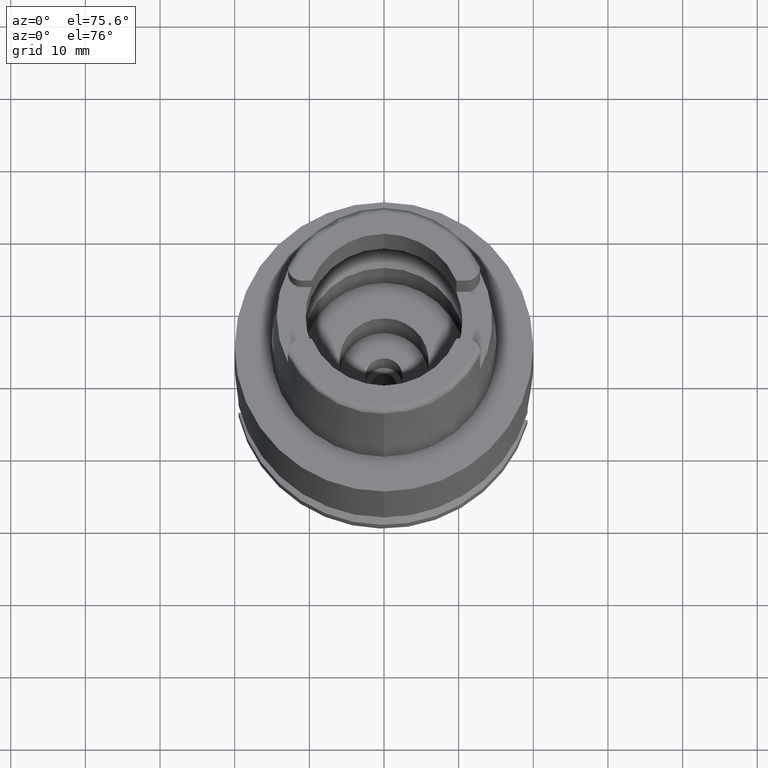
[diagram: clean part render]
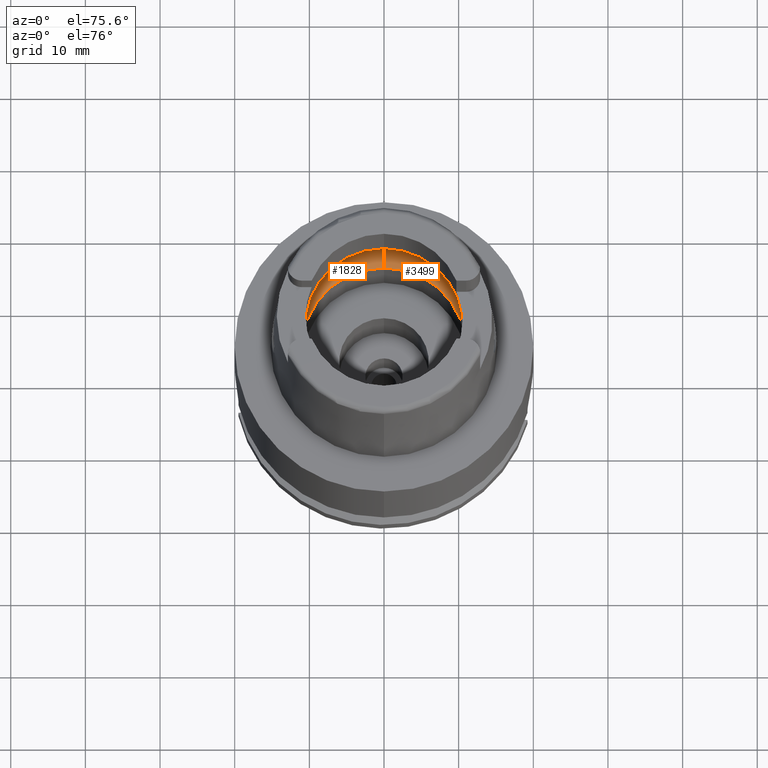
[diagram: same view with one multi-face feature highlighted, each face labeled with its STEP entity id]
A machine part, auxiliary view. The highlighted faces form ONE feature: a constant-radius fillet chain: 2 tangent blend faces with common blend radius 5 mm. The faces share edges in the B-rep.
Their STEP definitions:
[1] entity #3499 (Torus):
#298 = DIRECTION ( 'NONE',  ( 1.000000000000000000, 0.0000000000000000000, 0.0000000000000000000 ) ) ;
#352 = VERTEX_POINT ( 'NONE', #2903 ) ;
#381 = ORIENTED_EDGE ( 'NONE', *, *, #4491, .T. ) ;
#398 = ORIENTED_EDGE ( 'NONE', *, *, #2881, .F. ) ;
#440 = CARTESIAN_POINT ( 'NONE',  ( 12.71822740102000004, -0.9055573312577999134, 3.882617119809000261 ) ) ;
#447 = CARTESIAN_POINT ( 'NONE',  ( 0.0000000000000000000, -10.90000000000000036, 0.05033650044221000402 ) ) ;
#483 = ORIENTED_EDGE ( 'NONE', *, *, #3586, .F. ) ;
#525 = VERTEX_POINT ( 'NONE', #2697 ) ;
#608 = EDGE_CURVE ( 'NONE', #4678, #2464, #3903, .T. ) ;
#721 = DIRECTION ( 'NONE',  ( -1.000000000000000000, 0.0000000000000000000, 0.0000000000000000000 ) ) ;
#792 = CARTESIAN_POINT ( 'NONE',  ( 12.74455357708000136, 0.0000000000000000000, 3.700000000000000178 ) ) ;
#797 = CARTESIAN_POINT ( 'NONE',  ( 0.0000000000000000000, 0.0000000000000000000, 3.933312163512999504 ) ) ;
#825 = B_SPLINE_CURVE_WITH_KNOTS ( 'NONE', 3,
 ( #792, #1228, #4956, #2081, #440, #2833 ),
 .UNSPECIFIED., .F., .F.,
 ( 4, 1, 1, 4 ),
 ( 0.0000000000000000000, 0.3333333333333000081, 0.6666666666667000474, 1.000000000000000000 ),
 .UNSPECIFIED. ) ;
#869 = CARTESIAN_POINT ( 'NONE',  ( 12.74221164577000209, 0.3492612827124999542, 3.717726391319000179 ) ) ;
#904 = CARTESIAN_POINT ( 'NONE',  ( 0.0000000000000000000, 10.90000000000000036, 0.05033650044222000297 ) ) ;
#1031 = TOROIDAL_SURFACE ( 'NONE', #4099, 7.750000000000000000, 5.000000000000000000 ) ;
#1228 = CARTESIAN_POINT ( 'NONE',  ( 12.74455357708000136, -0.1165038148362000092, 3.700000000000000178 ) ) ;
#1280 = CARTESIAN_POINT ( 'NONE',  ( 12.70998420979999999, 1.009356917307999923, 3.933312163512999504 ) ) ;
#1385 = EDGE_CURVE ( 'NONE', #352, #3753, #825, .T. ) ;
#1455 = CIRCLE ( 'NONE', #4945, 12.75000000000000000 ) ;
#1493 = EDGE_CURVE ( 'NONE', #4314, #352, #3676, .T. ) ;
#1557 = DIRECTION ( 'NONE',  ( 0.0000000000000000000, -0.6299999999999791322, -0.7765951326141738997 ) ) ;
#1611 = AXIS2_PLACEMENT_3D ( 'NONE', #3954, #298, #1944 ) ;
#1824 = CARTESIAN_POINT ( 'NONE',  ( 12.70998420979999999, -1.009356917307999923, 3.933312163512999504 ) ) ;
#1944 = DIRECTION ( 'NONE',  ( 0.0000000000000000000, 0.6299999999999791322, -0.7765951326141738997 ) ) ;
#2081 = CARTESIAN_POINT ( 'NONE',  ( 12.73125904006000120, -0.6899171919855998647, 3.796695554551000384 ) ) ;
#2087 = DIRECTION ( 'NONE',  ( 0.0000000000000000000, 0.0000000000000000000, -1.000000000000000000 ) ) ;
#2138 = CIRCLE ( 'NONE', #4854, 12.75000000000000533 ) ;
#2369 = AXIS2_PLACEMENT_3D ( 'NONE', #4392, #721, #1557 ) ;
#2375 = CIRCLE ( 'NONE', #3543, 10.90000000000000036 ) ;
#2464 = VERTEX_POINT ( 'NONE', #4115 ) ;
#2483 = DIRECTION ( 'NONE',  ( 0.0000000000000000000, 1.000000000000000000, 0.0000000000000000000 ) ) ;
#2499 = CARTESIAN_POINT ( 'NONE',  ( 12.74455357708000136, 0.1165090171503000011, 3.700000000000000178 ) ) ;
#2668 = CARTESIAN_POINT ( 'NONE',  ( 12.70998420979999999, 1.009356917307999923, 3.933312163512999504 ) ) ;
#2697 = CARTESIAN_POINT ( 'NONE',  ( 0.0000000000000000000, -12.75000000000000000, 3.933312163512999504 ) ) ;
#2717 = ORIENTED_EDGE ( 'NONE', *, *, #5031, .F. ) ;
#2791 = DIRECTION ( 'NONE',  ( 0.0000000000000000000, 0.0000000000000000000, -1.000000000000000000 ) ) ;
#2833 = CARTESIAN_POINT ( 'NONE',  ( 12.70998420979999999, -1.009356917307999923, 3.933312163512999504 ) ) ;
#2838 = CARTESIAN_POINT ( 'NONE',  ( 0.0000000000000000000, 0.0000000000000000000, 3.933312163512999504 ) ) ;
#2876 = ORIENTED_EDGE ( 'NONE', *, *, #1493, .F. ) ;
#2881 = EDGE_CURVE ( 'NONE', #3753, #525, #2138, .T. ) ;
#2884 = CARTESIAN_POINT ( 'NONE',  ( 12.71822753198000022, 0.9055556822100000458, 3.882616314424999882 ) ) ;
#2903 = CARTESIAN_POINT ( 'NONE',  ( 12.74455357708000136, 0.0000000000000000000, 3.700000000000000178 ) ) ;
#3259 = DIRECTION ( 'NONE',  ( 0.0000000000000000000, -1.000000000000000000, 0.0000000000000000000 ) ) ;
#3314 = DIRECTION ( 'NONE',  ( 0.0000000000000000000, 0.0000000000000000000, 1.000000000000000000 ) ) ;
#3499 = ADVANCED_FACE ( 'NONE', ( #3663 ), #1031, .F. ) ;
#3500 = VERTEX_POINT ( 'NONE', #447 ) ;
#3543 = AXIS2_PLACEMENT_3D ( 'NONE', #4109, #3314, #3259 ) ;
#3586 = EDGE_CURVE ( 'NONE', #2464, #4314, #1455, .T. ) ;
#3633 = DIRECTION ( 'NONE',  ( 0.0000000000000000000, 0.0000000000000000000, 1.000000000000000000 ) ) ;
#3663 = FACE_OUTER_BOUND ( 'NONE', #3896, .T. ) ;
#3676 = B_SPLINE_CURVE_WITH_KNOTS ( 'NONE', 3,
 ( #1280, #2884, #4529, #869, #2499, #4128 ),
 .UNSPECIFIED., .F., .F.,
 ( 4, 1, 1, 4 ),
 ( 0.0000000000000000000, 0.3333333333333000081, 0.6666666666667000474, 1.000000000000000000 ),
 .UNSPECIFIED. ) ;
#3753 = VERTEX_POINT ( 'NONE', #1824 ) ;
#3896 = EDGE_LOOP ( 'NONE', ( #2876, #483, #4648, #2717, #381, #398, #4312 ) ) ;
#3903 = CIRCLE ( 'NONE', #1611, 5.000000000000000888 ) ;
#3954 = CARTESIAN_POINT ( 'NONE',  ( 0.0000000000000000000, 7.750000000000000000, 3.933312163512999504 ) ) ;
#3976 = CIRCLE ( 'NONE', #2369, 5.000000000000000888 ) ;
#4050 = DIRECTION ( 'NONE',  ( 0.0000000000000000000, 1.000000000000000000, 0.0000000000000000000 ) ) ;
#4099 = AXIS2_PLACEMENT_3D ( 'NONE', #2838, #3633, #2483 ) ;
#4109 = CARTESIAN_POINT ( 'NONE',  ( 0.0000000000000000000, 0.0000000000000000000, 0.05033650044222000297 ) ) ;
#4115 = CARTESIAN_POINT ( 'NONE',  ( 0.0000000000000000000, 12.75000000000000000, 3.933312163512999504 ) ) ;
#4128 = CARTESIAN_POINT ( 'NONE',  ( 12.74455357708000136, 0.0000000000000000000, 3.700000000000000178 ) ) ;
#4312 = ORIENTED_EDGE ( 'NONE', *, *, #1385, .F. ) ;
#4314 = VERTEX_POINT ( 'NONE', #2668 ) ;
#4392 = CARTESIAN_POINT ( 'NONE',  ( 0.0000000000000000000, -7.750000000000000000, 3.933312163512999504 ) ) ;
#4437 = CARTESIAN_POINT ( 'NONE',  ( 0.0000000000000000000, 0.0000000000000000000, 3.933312163512999504 ) ) ;
#4491 = EDGE_CURVE ( 'NONE', #3500, #525, #3976, .T. ) ;
#4529 = CARTESIAN_POINT ( 'NONE',  ( 12.73125913416000010, 0.6899131154631999996, 3.796694836484999946 ) ) ;
#4648 = ORIENTED_EDGE ( 'NONE', *, *, #608, .F. ) ;
#4678 = VERTEX_POINT ( 'NONE', #904 ) ;
#4854 = AXIS2_PLACEMENT_3D ( 'NONE', #4437, #2791, #5154 ) ;
#4945 = AXIS2_PLACEMENT_3D ( 'NONE', #797, #2087, #4050 ) ;
#4956 = CARTESIAN_POINT ( 'NONE',  ( 12.74221194226999998, -0.3492494900142999459, 3.717724218996000030 ) ) ;
#5031 = EDGE_CURVE ( 'NONE', #3500, #4678, #2375, .T. ) ;
#5154 = DIRECTION ( 'NONE',  ( 0.9968615066513395462, -0.07916524841634305087, 0.0000000000000000000 ) ) ;
[2] entity #1828 (Torus):
#127 = EDGE_CURVE ( 'NONE', #2873, #3247, #196, .T. ) ;
#170 = AXIS2_PLACEMENT_3D ( 'NONE', #3139, #717, #3969 ) ;
#196 = B_SPLINE_CURVE_WITH_KNOTS ( 'NONE', 3,
 ( #1903, #5169, #528, #3774, #677, #1042 ),
 .UNSPECIFIED., .F., .F.,
 ( 4, 1, 1, 4 ),
 ( 0.0000000000000000000, 0.3333333333333000081, 0.6666666666667000474, 1.000000000000000000 ),
 .UNSPECIFIED. ) ;
#207 = B_SPLINE_CURVE_WITH_KNOTS ( 'NONE', 3,
 ( #275, #5186, #1162, #5136, #1560, #1112 ),
 .UNSPECIFIED., .F., .F.,
 ( 4, 1, 1, 4 ),
 ( 0.0000000000000000000, 0.3333333333333000081, 0.6666666666667000474, 1.000000000000000000 ),
 .UNSPECIFIED. ) ;
#275 = CARTESIAN_POINT ( 'NONE',  ( -12.70998420979999999, -1.009356917307999923, 3.933312163512999504 ) ) ;
#297 = ORIENTED_EDGE ( 'NONE', *, *, #127, .F. ) ;
#298 = DIRECTION ( 'NONE',  ( 1.000000000000000000, 0.0000000000000000000, 0.0000000000000000000 ) ) ;
#447 = CARTESIAN_POINT ( 'NONE',  ( 0.0000000000000000000, -10.90000000000000036, 0.05033650044221000402 ) ) ;
#525 = VERTEX_POINT ( 'NONE', #2697 ) ;
#528 = CARTESIAN_POINT ( 'NONE',  ( -12.74221165319000093, 0.3492611227261000484, 3.717726340176000122 ) ) ;
#608 = EDGE_CURVE ( 'NONE', #4678, #2464, #3903, .T. ) ;
#609 = ORIENTED_EDGE ( 'NONE', *, *, #608, .T. ) ;
#677 = CARTESIAN_POINT ( 'NONE',  ( -12.71822751322999956, 0.9055559183387998923, 3.882616429747999920 ) ) ;
#680 = AXIS2_PLACEMENT_3D ( 'NONE', #1948, #3122, #3095 ) ;
#717 = DIRECTION ( 'NONE',  ( 0.0000000000000000000, 0.0000000000000000000, 1.000000000000000000 ) ) ;
#721 = DIRECTION ( 'NONE',  ( -1.000000000000000000, 0.0000000000000000000, 0.0000000000000000000 ) ) ;
#770 = CIRCLE ( 'NONE', #680, 12.75000000000000000 ) ;
#904 = CARTESIAN_POINT ( 'NONE',  ( 0.0000000000000000000, 10.90000000000000036, 0.05033650044222000297 ) ) ;
#1042 = CARTESIAN_POINT ( 'NONE',  ( -12.70998420979999999, 1.009356917307999923, 3.933312163512999504 ) ) ;
#1112 = CARTESIAN_POINT ( 'NONE',  ( -12.74455357708000136, 0.0000000000000000000, 3.700000000000000178 ) ) ;
#1162 = CARTESIAN_POINT ( 'NONE',  ( -12.73125906335000046, -0.6899166332000999935, 3.796695391513999596 ) ) ;
#1538 = AXIS2_PLACEMENT_3D ( 'NONE', #2743, #5177, #1988 ) ;
#1542 = CARTESIAN_POINT ( 'NONE',  ( 0.0000000000000000000, 0.0000000000000000000, 3.933312163512999504 ) ) ;
#1557 = DIRECTION ( 'NONE',  ( 0.0000000000000000000, -0.6299999999999791322, -0.7765951326141738997 ) ) ;
#1560 = CARTESIAN_POINT ( 'NONE',  ( -12.74455357708000136, -0.1165038350575000048, 3.700000000000000178 ) ) ;
#1574 = CARTESIAN_POINT ( 'NONE',  ( -12.70998420979999999, -1.009356917307999923, 3.933312163512999504 ) ) ;
#1611 = AXIS2_PLACEMENT_3D ( 'NONE', #3954, #298, #1944 ) ;
#1620 = CIRCLE ( 'NONE', #170, 10.90000000000000036 ) ;
#1736 = EDGE_CURVE ( 'NONE', #525, #2733, #770, .T. ) ;
#1750 = ORIENTED_EDGE ( 'NONE', *, *, #2978, .F. ) ;
#1828 = ADVANCED_FACE ( 'NONE', ( #2349 ), #4612, .F. ) ;
#1903 = CARTESIAN_POINT ( 'NONE',  ( -12.74455357708000136, 0.0000000000000000000, 3.700000000000000178 ) ) ;
#1944 = DIRECTION ( 'NONE',  ( 0.0000000000000000000, 0.6299999999999791322, -0.7765951326141738997 ) ) ;
#1948 = CARTESIAN_POINT ( 'NONE',  ( 0.0000000000000000000, 0.0000000000000000000, 3.933312163512999504 ) ) ;
#1988 = DIRECTION ( 'NONE',  ( -0.9968615066513395462, 0.07916524841634305087, 0.0000000000000000000 ) ) ;
#2267 = DIRECTION ( 'NONE',  ( 0.0000000000000000000, 1.000000000000000000, 0.0000000000000000000 ) ) ;
#2317 = AXIS2_PLACEMENT_3D ( 'NONE', #1542, #3154, #2267 ) ;
#2349 = FACE_OUTER_BOUND ( 'NONE', #3544, .T. ) ;
#2369 = AXIS2_PLACEMENT_3D ( 'NONE', #4392, #721, #1557 ) ;
#2464 = VERTEX_POINT ( 'NONE', #4115 ) ;
#2586 = ORIENTED_EDGE ( 'NONE', *, *, #3038, .F. ) ;
#2697 = CARTESIAN_POINT ( 'NONE',  ( 0.0000000000000000000, -12.75000000000000000, 3.933312163512999504 ) ) ;
#2733 = VERTEX_POINT ( 'NONE', #1574 ) ;
#2743 = CARTESIAN_POINT ( 'NONE',  ( 0.0000000000000000000, 0.0000000000000000000, 3.933312163512999504 ) ) ;
#2873 = VERTEX_POINT ( 'NONE', #3918 ) ;
#2891 = EDGE_CURVE ( 'NONE', #3247, #2464, #3997, .T. ) ;
#2978 = EDGE_CURVE ( 'NONE', #4678, #3500, #1620, .T. ) ;
#3038 = EDGE_CURVE ( 'NONE', #2733, #2873, #207, .T. ) ;
#3095 = DIRECTION ( 'NONE',  ( 0.0000000000000000000, -1.000000000000000000, 0.0000000000000000000 ) ) ;
#3122 = DIRECTION ( 'NONE',  ( 0.0000000000000000000, 0.0000000000000000000, -1.000000000000000000 ) ) ;
#3139 = CARTESIAN_POINT ( 'NONE',  ( 0.0000000000000000000, 0.0000000000000000000, 0.05033650044221000402 ) ) ;
#3154 = DIRECTION ( 'NONE',  ( 0.0000000000000000000, 0.0000000000000000000, 1.000000000000000000 ) ) ;
#3247 = VERTEX_POINT ( 'NONE', #4143 ) ;
#3471 = ORIENTED_EDGE ( 'NONE', *, *, #4491, .F. ) ;
#3500 = VERTEX_POINT ( 'NONE', #447 ) ;
#3544 = EDGE_LOOP ( 'NONE', ( #4636, #3471, #1750, #609, #4620, #297, #2586 ) ) ;
#3774 = CARTESIAN_POINT ( 'NONE',  ( -12.73125911061000082, 0.6899137000249000451, 3.796695002014000231 ) ) ;
#3903 = CIRCLE ( 'NONE', #1611, 5.000000000000000888 ) ;
#3918 = CARTESIAN_POINT ( 'NONE',  ( -12.74455357708000136, 0.0000000000000000000, 3.700000000000000178 ) ) ;
#3954 = CARTESIAN_POINT ( 'NONE',  ( 0.0000000000000000000, 7.750000000000000000, 3.933312163512999504 ) ) ;
#3969 = DIRECTION ( 'NONE',  ( 0.0000000000000000000, 1.000000000000000000, 0.0000000000000000000 ) ) ;
#3976 = CIRCLE ( 'NONE', #2369, 5.000000000000000888 ) ;
#3997 = CIRCLE ( 'NONE', #1538, 12.75000000000000533 ) ;
#4115 = CARTESIAN_POINT ( 'NONE',  ( 0.0000000000000000000, 12.75000000000000000, 3.933312163512999504 ) ) ;
#4143 = CARTESIAN_POINT ( 'NONE',  ( -12.70998420979999999, 1.009356917307999923, 3.933312163512999504 ) ) ;
#4392 = CARTESIAN_POINT ( 'NONE',  ( 0.0000000000000000000, -7.750000000000000000, 3.933312163512999504 ) ) ;
#4491 = EDGE_CURVE ( 'NONE', #3500, #525, #3976, .T. ) ;
#4612 = TOROIDAL_SURFACE ( 'NONE', #2317, 7.750000000000000000, 5.000000000000000000 ) ;
#4620 = ORIENTED_EDGE ( 'NONE', *, *, #2891, .F. ) ;
#4636 = ORIENTED_EDGE ( 'NONE', *, *, #1736, .F. ) ;
#4678 = VERTEX_POINT ( 'NONE', #904 ) ;
#5136 = CARTESIAN_POINT ( 'NONE',  ( -12.74221193788999962, -0.3492495252691000251, 3.717724247871999843 ) ) ;
#5169 = CARTESIAN_POINT ( 'NONE',  ( -12.74455357708000136, 0.1165089420520999813, 3.700000000000000178 ) ) ;
#5177 = DIRECTION ( 'NONE',  ( 0.0000000000000000000, 0.0000000000000000000, -1.000000000000000000 ) ) ;
#5186 = CARTESIAN_POINT ( 'NONE',  ( -12.71822741893999975, -0.9055571055671000069, 3.882617009583000378 ) ) ;